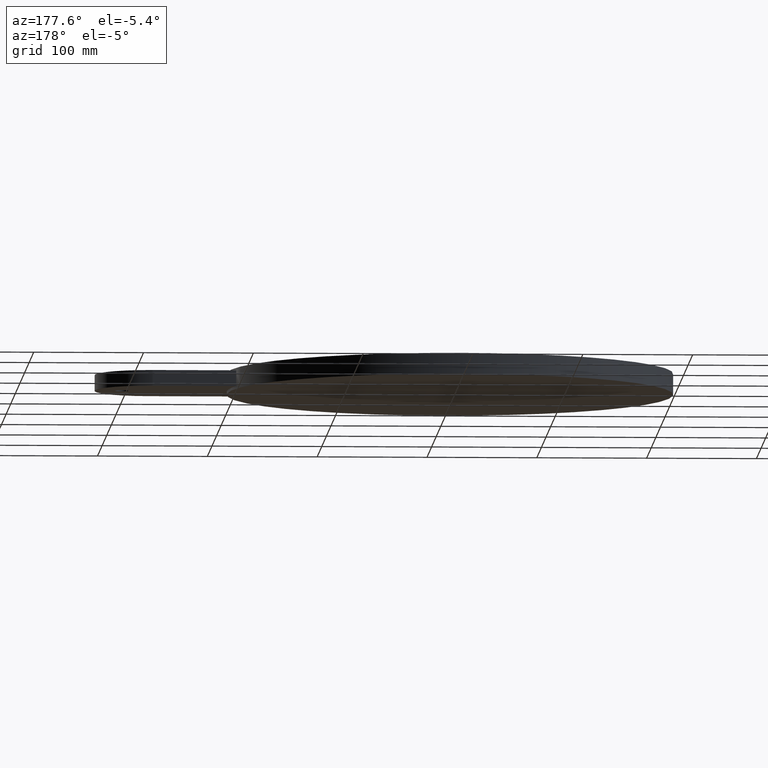
[diagram: clean part render]
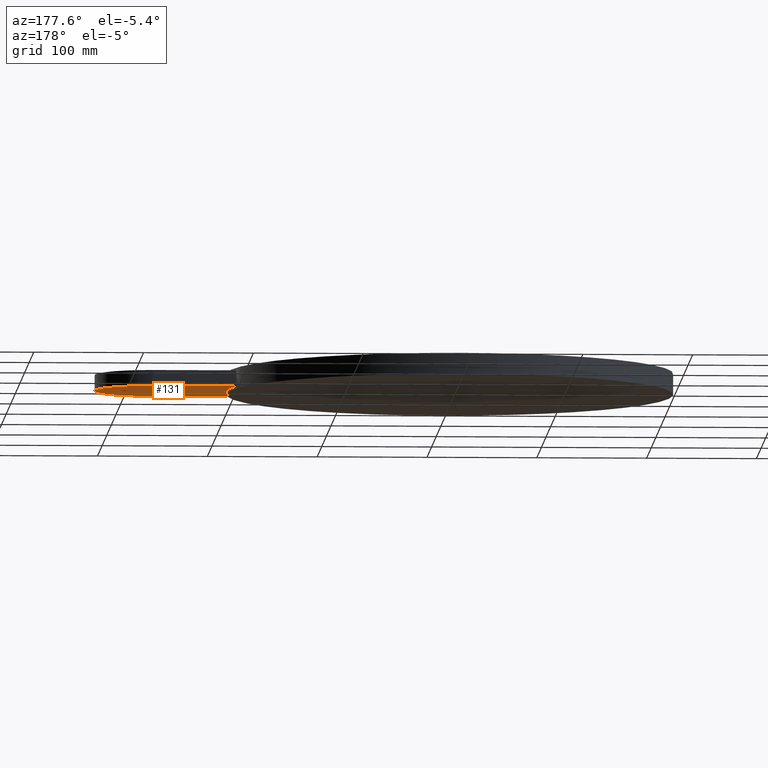
[diagram: same view with one face highlighted and labeled with its STEP entity id]
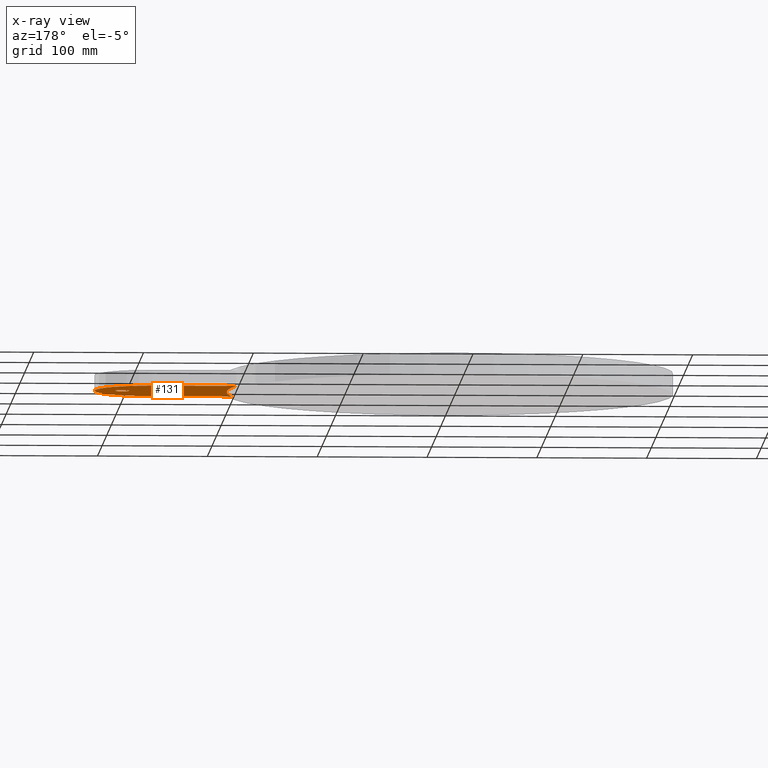
[diagram: x-ray of the same camera — body ghosted, the highlighted face saturated]
A machine part, auxiliary view. The second image highlights one B-rep face of the part: STEP entity #131.
The next image is the same camera in x-ray: the body ghosted, the highlighted face saturated — about 0% of this face is hidden behind the body in this view.
In plain terms, the highlighted planar face has unit normal (0, 0, 1).
Its self-contained STEP definition (entity closure, byte-faithful):
#78=AXIS2_PLACEMENT_3D('Plane Axis2P3D',#75,#76,#77) ;
#82=AXIS2_PLACEMENT_3D('Circle Axis2P3D',#80,#81,$) ;
#89=AXIS2_PLACEMENT_3D('Circle Axis2P3D',#87,#88,$) ;
#103=AXIS2_PLACEMENT_3D('Circle Axis2P3D',#101,#102,$) ;
#115=AXIS2_PLACEMENT_3D('Circle Axis2P3D',#113,#114,$) ;
#124=AXIS2_PLACEMENT_3D('Circle Axis2P3D',#122,#123,$) ;
#44=CARTESIAN_POINT('Vertex',(7.74596669245,-2.00000000001,-0.281250000001)) ;
#49=CARTESIAN_POINT('Line Origine',(9.24596669245,-2.00000000001,-0.281250000001)) ;
#53=CARTESIAN_POINT('Vertex',(10.7459666925,-2.00000000001,-0.281250000001)) ;
#75=CARTESIAN_POINT('Axis2P3D Location',(0.,0.,-0.281250000001)) ;
#80=CARTESIAN_POINT('Axis2P3D Location',(-2.34982637023E-014,4.75560098737E-015,-0.281250000001)) ;
#84=CARTESIAN_POINT('Vertex',(8.00000000003,0.,-0.281250000001)) ;
#87=CARTESIAN_POINT('Axis2P3D Location',(-4.58775624664E-014,-6.57391901195E-015,-0.281250000001)) ;
#91=CARTESIAN_POINT('Vertex',(7.74596669245,2.00000000001,-0.281250000001)) ;
#94=CARTESIAN_POINT('Line Origine',(9.24596669245,2.00000000001,-0.281250000001)) ;
#98=CARTESIAN_POINT('Vertex',(10.7459666925,2.00000000001,-0.281250000001)) ;
#101=CARTESIAN_POINT('Axis2P3D Location',(10.7459666925,0.,-0.281250000001)) ;
#113=CARTESIAN_POINT('Axis2P3D Location',(11.7459666925,0.,-0.281250000001)) ;
#117=CARTESIAN_POINT('Vertex',(11.9959666925,0.,-0.281250000001)) ;
#119=CARTESIAN_POINT('Vertex',(11.4959666925,3.06161699788E-017,-0.281250000001)) ;
#122=CARTESIAN_POINT('Axis2P3D Location',(11.7459666925,0.,-0.281250000001)) ;
#50=DIRECTION('Vector Direction',(0.0393700787402,0.,0.)) ;
#76=DIRECTION('Axis2P3D Direction',(0.,0.,0.0393700787402)) ;
#77=DIRECTION('Axis2P3D XDirection',(0.0393700787402,0.,0.)) ;
#81=DIRECTION('Axis2P3D Direction',(0.,0.,0.0393700787402)) ;
#88=DIRECTION('Axis2P3D Direction',(0.,0.,0.0393700787402)) ;
#95=DIRECTION('Vector Direction',(-0.0393700787402,0.,0.)) ;
#102=DIRECTION('Axis2P3D Direction',(0.,0.,0.0393700787402)) ;
#114=DIRECTION('Axis2P3D Direction',(0.,0.,0.0393700787402)) ;
#123=DIRECTION('Axis2P3D Direction',(0.,0.,0.0393700787402)) ;
#51=VECTOR('Line Direction',#50,0.0393700787402) ;
#96=VECTOR('Line Direction',#95,0.0393700787402) ;
#107=ORIENTED_EDGE('',*,*,#86,.T.) ;
#108=ORIENTED_EDGE('',*,*,#93,.T.) ;
#109=ORIENTED_EDGE('',*,*,#100,.F.) ;
#110=ORIENTED_EDGE('',*,*,#105,.F.) ;
#111=ORIENTED_EDGE('',*,*,#55,.F.) ;
#128=ORIENTED_EDGE('',*,*,#121,.T.) ;
#129=ORIENTED_EDGE('',*,*,#126,.T.) ;
#130=FACE_BOUND('',#127,.T.) ;
#131=ADVANCED_FACE('PartBody',(#112,#130),#79,.F.) ;
#83=CIRCLE('generated circle',#82,8.00000000003) ;
#90=CIRCLE('generated circle',#89,8.00000000003) ;
#104=CIRCLE('generated circle',#103,2.00000000001) ;
#116=CIRCLE('generated circle',#115,0.250000000001) ;
#125=CIRCLE('generated circle',#124,0.250000000001) ;
#55=EDGE_CURVE('',#45,#54,#52,.T.) ;
#86=EDGE_CURVE('',#45,#85,#83,.T.) ;
#93=EDGE_CURVE('',#85,#92,#90,.T.) ;
#100=EDGE_CURVE('',#99,#92,#97,.T.) ;
#105=EDGE_CURVE('',#54,#99,#104,.T.) ;
#121=EDGE_CURVE('',#118,#120,#116,.T.) ;
#126=EDGE_CURVE('',#120,#118,#125,.T.) ;
#106=EDGE_LOOP('',(#107,#108,#109,#110,#111)) ;
#127=EDGE_LOOP('',(#128,#129)) ;
#112=FACE_OUTER_BOUND('',#106,.T.) ;
#52=LINE('Line',#49,#51) ;
#97=LINE('Line',#94,#96) ;
#79=PLANE('',#78) ;
#45=VERTEX_POINT('',#44) ;
#54=VERTEX_POINT('',#53) ;
#85=VERTEX_POINT('',#84) ;
#92=VERTEX_POINT('',#91) ;
#99=VERTEX_POINT('',#98) ;
#118=VERTEX_POINT('',#117) ;
#120=VERTEX_POINT('',#119) ;